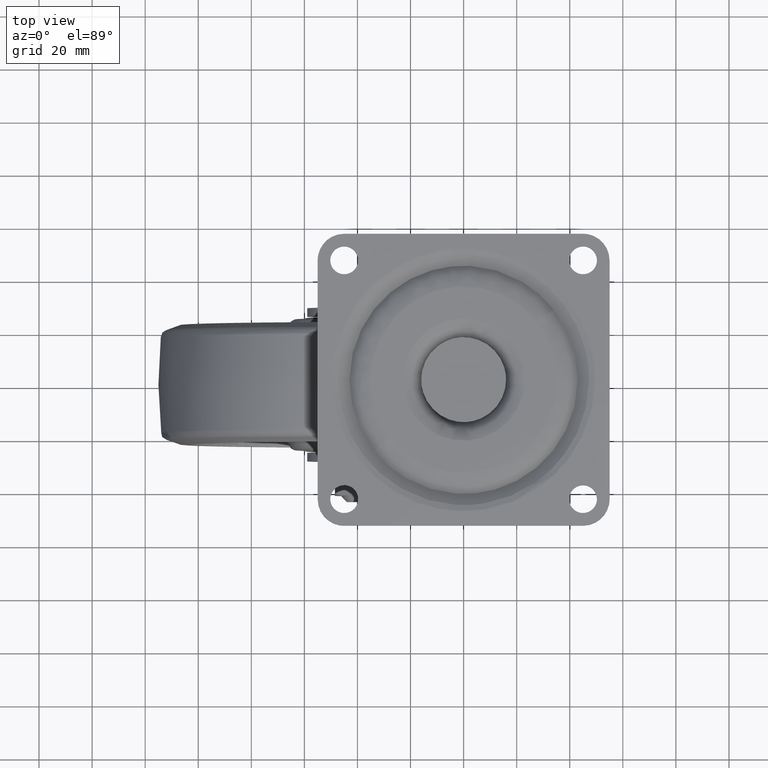
[diagram: clean part render]
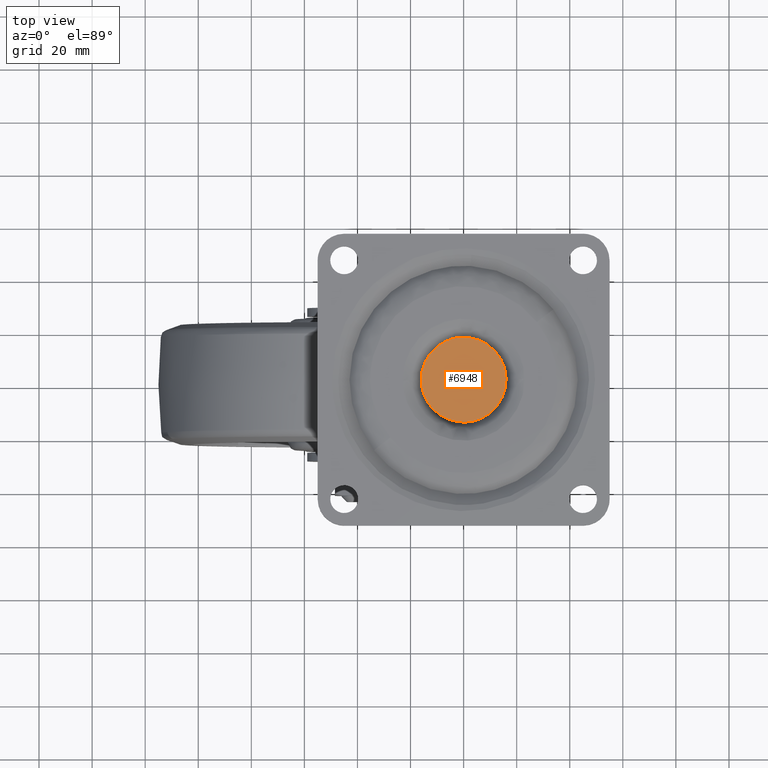
[diagram: same view with one face highlighted and labeled with its STEP entity id]
A machine part, top view. The second image highlights one B-rep face of the part: STEP entity #6948.
In plain terms, the highlighted face is a freeform B-spline surface patch.
Its self-contained STEP definition (entity closure, byte-faithful):
#6877=CARTESIAN_POINT('',(-17.598399937977788,-17.598006196946891,0.0));
#6878=CARTESIAN_POINT('',(17.598400796284679,-17.598006196946891,0.0));
#6879=CARTESIAN_POINT('',(-17.598399937977788,17.598005624742331,0.0));
#6880=CARTESIAN_POINT('',(17.598400796284679,17.598005624742331,0.0));
#6881=B_SPLINE_SURFACE_WITH_KNOTS('',1,1,((#6877,#6879),(#6878,#6880)),.UNSPECIFIED.,.F.,.F.,.U.,(2,2),(2,2),(0.0,35.196800734262467),(0.0,35.196011821689233),.UNSPECIFIED.);
#6882=CARTESIAN_POINT('',(0.976776632718017,-15.970156774740049,7.216450E-016));
#6883=VERTEX_POINT('',#6882);
#6884=CARTESIAN_POINT('',(-16.0,1.421085E-014,0.0));
#6885=VERTEX_POINT('',#6884);
#6886=CARTESIAN_POINT('',(0.976776632718021,-15.970156774740056,0.0));
#6887=CARTESIAN_POINT('',(0.488844212857802,-15.999999999999988,0.0));
#6888=CARTESIAN_POINT('',(0.0,-15.999999999999989,0.0));
#6889=CARTESIAN_POINT('',(-15.999999999999998,-15.999999999999986,0.0));
#6890=CARTESIAN_POINT('',(-16.0,1.421085E-014,0.0));
#6898=(BOUNDED_CURVE()B_SPLINE_CURVE(2,(#6886,#6887,#6888,#6889,#6890),.UNSPECIFIED.,.F.,.U.)B_SPLINE_CURVE_WITH_KNOTS((3,2,3),(0.739332962240236,0.750000000000000,1.0),.UNSPECIFIED.)CURVE()GEOMETRIC_REPRESENTATION_ITEM()RATIONAL_B_SPLINE_CURVE((0.976072041669490,0.987502787901353,1.0,0.707106781186548,1.0))REPRESENTATION_ITEM(''));
#6899=EDGE_CURVE('',#6883,#6885,#6898,.T.);
#6900=ORIENTED_EDGE('',*,*,#6899,.F.);
#6901=CARTESIAN_POINT('',(16.0,1.421085E-014,0.0));
#6902=VERTEX_POINT('',#6901);
#6903=CARTESIAN_POINT('',(16.0,1.421085E-014,0.0));
#6904=CARTESIAN_POINT('',(16.0,-15.051297070339736,0.0));
#6905=CARTESIAN_POINT('',(0.976776632718021,-15.970156774740056,0.0));
#6913=(BOUNDED_CURVE()B_SPLINE_CURVE(2,(#6903,#6904,#6905),.UNSPECIFIED.,.F.,.U.)B_SPLINE_CURVE_WITH_KNOTS((3,3),(0.500000000000000,0.739332962240236),.UNSPECIFIED.)CURVE()GEOMETRIC_REPRESENTATION_ITEM()RATIONAL_B_SPLINE_CURVE((1.0,0.719603993285195,0.976072041669490))REPRESENTATION_ITEM(''));
#6914=EDGE_CURVE('',#6902,#6883,#6913,.T.);
#6915=ORIENTED_EDGE('',*,*,#6914,.F.);
#6916=CARTESIAN_POINT('',(-0.976776632718017,15.970156774740079,7.216450E-016));
#6917=VERTEX_POINT('',#6916);
#6918=CARTESIAN_POINT('',(-0.976776632718018,15.970156774740088,0.0));
#6919=CARTESIAN_POINT('',(-0.488844212857801,16.000000000000018,0.0));
#6920=CARTESIAN_POINT('',(0.0,16.000000000000011,0.0));
#6921=CARTESIAN_POINT('',(15.999999999999998,16.000000000000014,0.0));
#6922=CARTESIAN_POINT('',(16.0,1.421085E-014,0.0));
#6930=(BOUNDED_CURVE()B_SPLINE_CURVE(2,(#6918,#6919,#6920,#6921,#6922),.UNSPECIFIED.,.F.,.U.)B_SPLINE_CURVE_WITH_KNOTS((3,2,3),(0.239332962240236,0.250000000000000,0.500000000000000),.UNSPECIFIED.)CURVE()GEOMETRIC_REPRESENTATION_ITEM()RATIONAL_B_SPLINE_CURVE((0.976072041669490,0.987502787901353,1.0,0.707106781186548,1.0))REPRESENTATION_ITEM(''));
#6931=EDGE_CURVE('',#6917,#6902,#6930,.T.);
#6932=ORIENTED_EDGE('',*,*,#6931,.F.);
#6933=CARTESIAN_POINT('',(-16.0,1.421085E-014,0.0));
#6934=CARTESIAN_POINT('',(-16.000000000000004,15.051297070339768,0.0));
#6935=CARTESIAN_POINT('',(-0.976776632718018,15.970156774740088,0.0));
#6943=(BOUNDED_CURVE()B_SPLINE_CURVE(2,(#6933,#6934,#6935),.UNSPECIFIED.,.F.,.U.)B_SPLINE_CURVE_WITH_KNOTS((3,3),(0.0,0.239332962240236),.UNSPECIFIED.)CURVE()GEOMETRIC_REPRESENTATION_ITEM()RATIONAL_B_SPLINE_CURVE((1.0,0.719603993285195,0.976072041669490))REPRESENTATION_ITEM(''));
#6944=EDGE_CURVE('',#6885,#6917,#6943,.T.);
#6945=ORIENTED_EDGE('',*,*,#6944,.F.);
#6946=EDGE_LOOP('',(#6900,#6915,#6932,#6945));
#6947=FACE_OUTER_BOUND('',#6946,.T.);
#6948=ADVANCED_FACE('',(#6947),#6881,.T.);